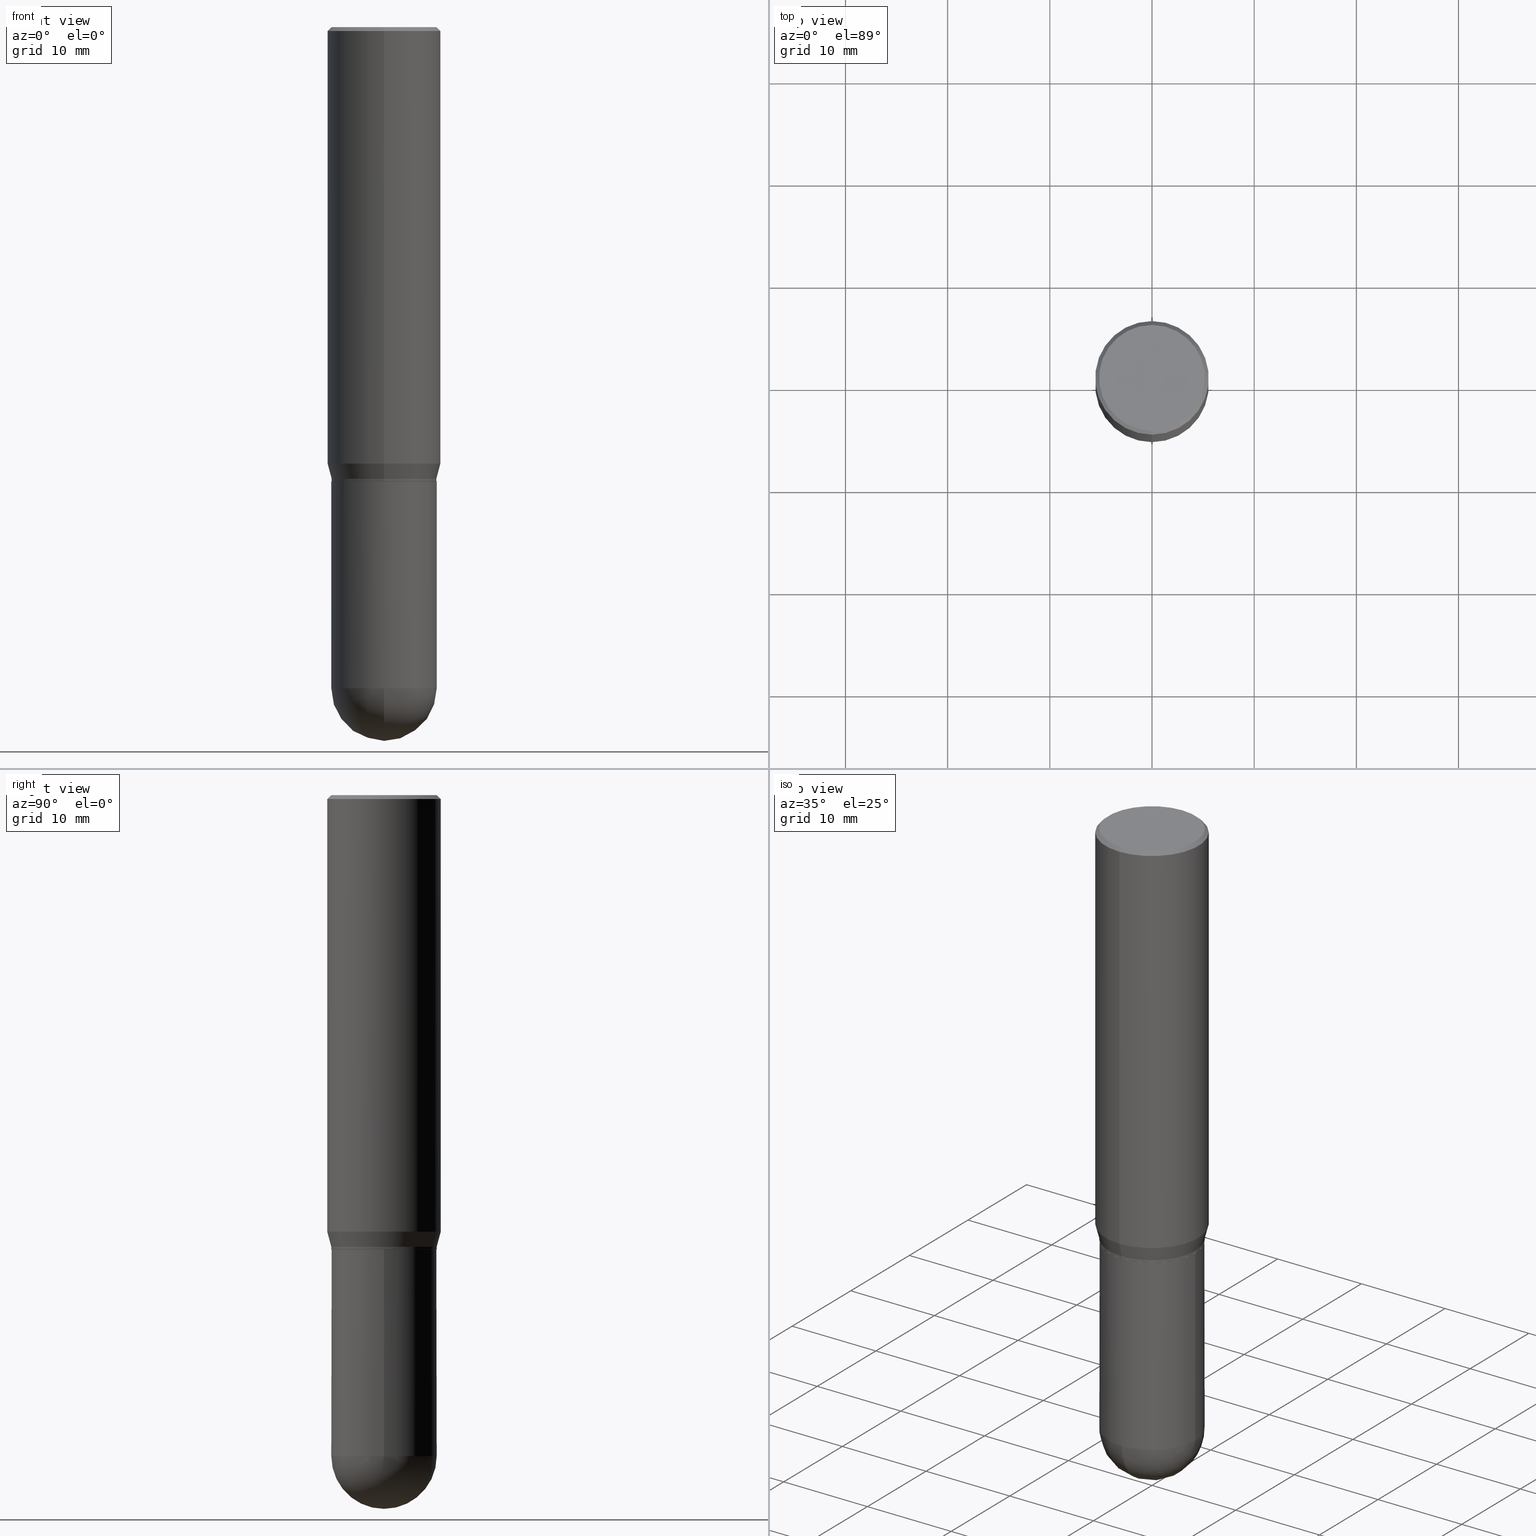
[diagram: canonical four-view strip — front | top / right | iso, engineering-drawing reading convention]
A machine part, canonical four-view strip (front | top / right | iso — engineering-drawing reading convention). The complete STEP part file that produces these views, byte-faithful:
ISO-10303-21;
HEADER;
FILE_DESCRIPTION (( 'STEP AP203' ),
    '1' );
FILE_NAME ('30552.STEP',
    '2024-03-08T15:32:50',
    ( '' ),
    ( '' ),
    'SwSTEP 2.0',
    'SolidWorks 2023',
    '' );
FILE_SCHEMA (( 'CONFIG_CONTROL_DESIGN' ));
ENDSEC;

DATA;
#1 = CARTESIAN_POINT ( 'NONE',  ( -1.527523085743870449E-15, -0.2187500000000000000, 7.637412823525378635E-16 ) ) ;
#2 = SHAPE_DEFINITION_REPRESENTATION ( #260, #502 ) ;
#3 = CIRCLE ( 'NONE', #336, 0.2037499999999999867 ) ;
#4 = AXIS2_PLACEMENT_3D ( 'NONE', #105, #224, #384 ) ;
#5 = VERTEX_POINT ( 'NONE', #112 ) ;
#6 = DIRECTION ( 'NONE',  ( -6.982962677686265133E-15, -1.000000000000000000, 3.746534391310989557E-15 ) ) ;
#7 = CARTESIAN_POINT ( 'NONE',  ( 3.668300223072564941E-31, -5.237083078988864869E-17, -0.01500000000000009832 ) ) ;
#8 = PERSON_AND_ORGANIZATION ( #443, #358 ) ;
#9 = DIRECTION ( 'NONE',  ( -2.445533482048360723E-29, 3.491388719325887151E-15, 1.000000000000000000 ) ) ;
#10 = PRODUCT_DEFINITION_FORMATION_WITH_SPECIFIED_SOURCE ( 'ANY', '', #314, .NOT_KNOWN. ) ;
#11 = AXIS2_PLACEMENT_3D ( 'NONE', #119, #233, #396 ) ;
#12 = EDGE_CURVE ( 'NONE', #106, #304, #253, .T. ) ;
#13 = EDGE_LOOP ( 'NONE', ( #346, #459, #498, #184 ) ) ;
#14 = EDGE_LOOP ( 'NONE', ( #492, #295, #503, #69 ) ) ;
#15 = CARTESIAN_POINT ( 'NONE',  ( 6.228364502472924746E-29, -8.892453821899607499E-15, -2.546899999999999942 ) ) ;
#16 = VERTEX_POINT ( 'NONE', #395 ) ;
#17 =( GEOMETRIC_REPRESENTATION_CONTEXT ( 3 ) GLOBAL_UNCERTAINTY_ASSIGNED_CONTEXT ( ( #142 ) ) GLOBAL_UNIT_ASSIGNED_CONTEXT ( ( #169, #322, #323 ) ) REPRESENTATION_CONTEXT ( 'NONE', 'WORKASPACE' ) );
#18 = VECTOR ( 'NONE', #153, 39.37007874015748143 ) ;
#19 = ADVANCED_FACE ( 'NONE', ( #192 ), #162, .T. ) ;
#20 = CARTESIAN_POINT ( 'NONE',  ( 1.527523085743871040E-15, 0.2187499999999999167, -0.01500000000000086160 ) ) ;
#21 = EDGE_LOOP ( 'NONE', ( #35, #53 ) ) ;
#22 = DESIGN_CONTEXT ( 'detailed design', #238, 'design' ) ;
#23 = DIRECTION ( 'NONE',  ( -6.982962677686265133E-15, -1.000000000000000000, 3.746534391310989557E-15 ) ) ;
#24 = ORIENTED_EDGE ( 'NONE', *, *, #317, .F. ) ;
#25 = CARTESIAN_POINT ( 'NONE',  ( 0.000000000000000000, 0.000000000000000000, 0.000000000000000000 ) ) ;
#26 = ORIENTED_EDGE ( 'NONE', *, *, #262, .F. ) ;
#27 = VECTOR ( 'NONE', #283, 39.37007874015748854 ) ;
#28 = VECTOR ( 'NONE', #161, 39.37007874015748143 ) ;
#29 = CARTESIAN_POINT ( 'NONE',  ( 0.000000000000000000, 0.000000000000000000, 0.000000000000000000 ) ) ;
#30 = VERTEX_POINT ( 'NONE', #310 ) ;
#31 = CC_DESIGN_PERSON_AND_ORGANIZATION_ASSIGNMENT ( #480, #355, ( #10 ) ) ;
#32 = DIRECTION ( 'NONE',  ( -2.445468806185136597E-29, 3.491481338843145583E-15, 1.000000000000000000 ) ) ;
#33 = EDGE_LOOP ( 'NONE', ( #324, #127, #103, #170 ) ) ;
#34 = EDGE_CURVE ( 'NONE', #373, #108, #385, .T. ) ;
#35 = ORIENTED_EDGE ( 'NONE', *, *, #342, .F. ) ;
#36 = AXIS2_PLACEMENT_3D ( 'NONE', #202, #331, #356 ) ;
#37 = EDGE_CURVE ( 'NONE', #30, #349, #495, .T. ) ;
#38 = DIRECTION ( 'NONE',  ( 1.000000000000000000, -6.982962677686262766E-15, 0.000000000000000000 ) ) ;
#39 = AXIS2_PLACEMENT_3D ( 'NONE', #309, #434, #471 ) ;
#40 = CARTESIAN_POINT ( 'NONE',  ( 2.425695952394959813E-45, -3.463067484814240316E-31, -9.918882608645434798E-17 ) ) ;
#41 = DIRECTION ( 'NONE',  ( -2.445533482048360723E-29, 3.491388719325887151E-15, 1.000000000000000000 ) ) ;
#42 = CARTESIAN_POINT ( 'NONE',  ( -1.500733937012521740E-15, -0.2187500000000000555, -0.01499999999999933505 ) ) ;
#43 = DIRECTION ( 'NONE',  ( -1.000000000000000000, 6.982962677686266711E-15, -4.883557194083112901E-29 ) ) ;
#44 = ORIENTED_EDGE ( 'NONE', *, *, #37, .T. ) ;
#45 = DIRECTION ( 'NONE',  ( -6.982962677686266711E-15, -1.000000000000000000, 4.035225987687243463E-15 ) ) ;
#46 = AXIS2_PLACEMENT_3D ( 'NONE', #7, #9, #372 ) ;
#47 = AXIS2_PLACEMENT_3D ( 'NONE', #345, #499, #151 ) ;
#48 = EDGE_CURVE ( 'NONE', #279, #335, #234, .T. ) ;
#49 = EDGE_CURVE ( 'NONE', #413, #5, #270, .T. ) ;
#50 = ORIENTED_EDGE ( 'NONE', *, *, #87, .F. ) ;
#51 = CIRCLE ( 'NONE', #458, 0.2030999999999999472 ) ;
#52 = CARTESIAN_POINT ( 'NONE',  ( 0.000000000000000000, 0.000000000000000000, 0.000000000000000000 ) ) ;
#53 = ORIENTED_EDGE ( 'NONE', *, *, #37, .F. ) ;
#54 = FACE_OUTER_BOUND ( 'NONE', #13, .T. ) ;
#55 = APPLICATION_CONTEXT ( 'configuration controlled 3d designs of mechanical parts and assemblies' ) ;
#56 = CC_DESIGN_PERSON_AND_ORGANIZATION_ASSIGNMENT ( #203, #237, ( #10 ) ) ;
#57 = AXIS2_PLACEMENT_3D ( 'NONE', #187, #348, #229 ) ;
#58 = CARTESIAN_POINT ( 'NONE',  ( -0.2031000000000000028, 1.443112296328763497E-15, -9.990357168307714203E-30 ) ) ;
#59 = ORIENTED_EDGE ( 'NONE', *, *, #194, .F. ) ;
#60 = CARTESIAN_POINT ( 'NONE',  ( 1.443112296328806293E-15, 0.2030999999999939243, -1.749500000000000721 ) ) ;
#61 = ORIENTED_EDGE ( 'NONE', *, *, #34, .F. ) ;
#62 = APPROVAL_DATE_TIME ( #109, #163 ) ;
#63 = FACE_OUTER_BOUND ( 'NONE', #379, .T. ) ;
#64 = CC_DESIGN_DATE_AND_TIME_ASSIGNMENT ( #363, #277, ( #247 ) ) ;
#65 = EDGE_LOOP ( 'NONE', ( #225, #223, #213, #494 ) ) ;
#66 = LOCAL_TIME ( 10, 32, 50.00000000000000000, #211 ) ;
#67 = AXIS2_PLACEMENT_3D ( 'NONE', #25, #416, #375 ) ;
#68 = FACE_OUTER_BOUND ( 'NONE', #254, .T. ) ;
#69 = ORIENTED_EDGE ( 'NONE', *, *, #466, .F. ) ;
#70 = PERSON_AND_ORGANIZATION ( #443, #358 ) ;
#71 = ORIENTED_EDGE ( 'NONE', *, *, #12, .T. ) ;
#72 = LINE ( 'NONE', #42, #482 ) ;
#73 = CARTESIAN_POINT ( 'NONE',  ( 1.443112296328805307E-15, 0.2030999999999938688, -1.740000000000000879 ) ) ;
#74 = CC_DESIGN_APPROVAL ( #163, ( #10 ) ) ;
#75 = DIRECTION ( 'NONE',  ( -2.445533482048360723E-29, 3.491388719325887151E-15, 1.000000000000000000 ) ) ;
#76 = AXIS2_PLACEMENT_3D ( 'NONE', #507, #500, #159 ) ;
#77 = AXIS2_PLACEMENT_3D ( 'NONE', #29, #32, #107 ) ;
#78 = DIRECTION ( 'NONE',  ( -1.000000000000000000, 7.105427357601001070E-15, -4.926315508542082329E-29 ) ) ;
#79 = CARTESIAN_POINT ( 'NONE',  ( 6.210996075139691695E-29, -8.917326398390289827E-15, -2.546899999999999942 ) ) ;
#80 = DIRECTION ( 'NONE',  ( -6.982962677686266711E-15, -1.000000000000000000, 4.035225987687243463E-15 ) ) ;
#81 = EDGE_CURVE ( 'NONE', #344, #173, #155, .T. ) ;
#82 =( LENGTH_UNIT ( ) NAMED_UNIT ( * ) SI_UNIT ( $, .METRE. ) );
#83 = AXIS2_PLACEMENT_3D ( 'NONE', #40, #122, #276 ) ;
#84 = ADVANCED_FACE ( 'NONE', ( #510 ), #440, .T. ) ;
#85 = APPLICATION_PROTOCOL_DEFINITION ( 'international standard', 'config_control_design', 1994, #55 ) ;
#86 = MANIFOLD_SOLID_BREP ( 'Body-Move/Copy2[2]', #131 ) ;
#87 = EDGE_CURVE ( 'NONE', #335, #16, #132, .T. ) ;
#88 = CYLINDRICAL_SURFACE ( 'NONE', #435, 0.2030999999999999472 ) ;
#89 = DIRECTION ( 'NONE',  ( -2.445533482048360723E-29, 3.491388719325887151E-15, 1.000000000000000000 ) ) ;
#90 = CC_DESIGN_SECURITY_CLASSIFICATION ( #247, ( #10 ) ) ;
#91 = ORIENTED_EDGE ( 'NONE', *, *, #486, .F. ) ;
#92 = CIRCLE ( 'NONE', #366, 0.2026000000000000023 ) ;
#93 = DIRECTION ( 'NONE',  ( -6.982962677686266711E-15, -1.000000000000000000, 3.491388719325887151E-15 ) ) ;
#94 = EDGE_CURVE ( 'NONE', #430, #100, #268, .T. ) ;
#95 = EDGE_LOOP ( 'NONE', ( #61, #423, #136, #461 ) ) ;
#96 = DIRECTION ( 'NONE',  ( 1.000000000000000000, -6.982962677686265922E-15, 4.883557194083112340E-29 ) ) ;
#97 = APPROVAL ( #352, 'UNSPECIFIED' ) ;
#98 = ORIENTED_EDGE ( 'NONE', *, *, #241, .F. ) ;
#99 = LINE ( 'NONE', #58, #18 ) ;
#100 = VERTEX_POINT ( 'NONE', #177 ) ;
#101 = AXIS2_PLACEMENT_3D ( 'NONE', #115, #75, #80 ) ;
#102 = CARTESIAN_POINT ( 'NONE',  ( -1.418239719838037782E-15, -0.2031000000000060257, -1.739999999999999103 ) ) ;
#103 = ORIENTED_EDGE ( 'NONE', *, *, #201, .T. ) ;
#104 = EDGE_CURVE ( 'NONE', #100, #279, #316, .T. ) ;
#105 = CARTESIAN_POINT ( 'NONE',  ( 3.668300223072564941E-31, -5.237083078988864869E-17, -0.01500000000000009832 ) ) ;
#106 = VERTEX_POINT ( 'NONE', #460 ) ;
#107 = DIRECTION ( 'NONE',  ( 1.000000000000000000, -6.982962677686266711E-15, 4.876176775795935793E-29 ) ) ;
#108 = VERTEX_POINT ( 'NONE', #299 ) ;
#109 = DATE_AND_TIME ( #462, #426 ) ;
#110 = AXIS2_PLACEMENT_3D ( 'NONE', #351, #313, #397 ) ;
#111 = VECTOR ( 'NONE', #172, 39.37007874015748854 ) ;
#112 = CARTESIAN_POINT ( 'NONE',  ( -1.418239719838037782E-15, -0.2031000000000060257, -1.739999999999999103 ) ) ;
#113 = CALENDAR_DATE ( 2024, 8, 3 ) ;
#114 = DIRECTION ( 'NONE',  ( 6.982962677686266711E-15, 1.000000000000000000, -2.690150658458162309E-15 ) ) ;
#115 = CARTESIAN_POINT ( 'NONE',  ( 4.278460826843606837E-29, -6.108184564460639779E-15, -1.749500000000000055 ) ) ;
#116 = CARTESIAN_POINT ( 'NONE',  ( -1.418239719838080381E-15, -0.2030999999999999472, 7.091010488950875281E-16 ) ) ;
#117 = CC_DESIGN_APPROVAL ( #97, ( #247 ) ) ;
#118 = PERSON_AND_ORGANIZATION_ROLE ( 'design_owner' ) ;
#119 = CARTESIAN_POINT ( 'NONE',  ( 0.000000000000000000, 0.000000000000000000, 0.000000000000000000 ) ) ;
#120 = AXIS2_PLACEMENT_3D ( 'NONE', #183, #96, #250 ) ;
#121 = DIRECTION ( 'NONE',  ( -6.982962677686265922E-15, -1.000000000000000000, 4.045184590815789415E-15 ) ) ;
#122 = DIRECTION ( 'NONE',  ( -2.445533482048360723E-29, 3.491388719325887151E-15, 1.000000000000000000 ) ) ;
#123 = CALENDAR_DATE ( 2024, 8, 3 ) ;
#124 = APPROVAL_STATUS ( 'not_yet_approved' ) ;
#125 = DIRECTION ( 'NONE',  ( -2.445468806185136597E-29, 3.491481338843145583E-15, 1.000000000000000000 ) ) ;
#126 = PERSON_AND_ORGANIZATION_ROLE ( 'classification_officer' ) ;
#127 = ORIENTED_EDGE ( 'NONE', *, *, #269, .T. ) ;
#128 = DATE_TIME_ROLE ( 'creation_date' ) ;
#129 = EDGE_CURVE ( 'NONE', #30, #150, #258, .T. ) ;
#130 = FACE_OUTER_BOUND ( 'NONE', #425, .T. ) ;
#131 = CLOSED_SHELL ( 'NONE', ( #146, #138, #364, #438, #215, #243, #175, #133, #280, #382, #228, #455 ) ) ;
#132 = CIRCLE ( 'NONE', #404, 0.2187500000000000000 ) ;
#133 = ADVANCED_FACE ( 'NONE', ( #337 ), #419, .T. ) ;
#134 = DIRECTION ( 'NONE',  ( -6.982962677686265133E-15, -1.000000000000000000, 3.491388719325887545E-15 ) ) ;
#135 = CARTESIAN_POINT ( 'NONE',  ( 6.716355003342508555E-29, -9.614009970063991023E-15, -2.750000000000000000 ) ) ;
#136 = ORIENTED_EDGE ( 'NONE', *, *, #403, .F. ) ;
#137 = VECTOR ( 'NONE', #143, 39.37007874015748143 ) ;
#138 = ADVANCED_FACE ( 'NONE', ( #334 ), #467, .T. ) ;
#139 = PLANE ( 'NONE',  #393 ) ;
#140 = DIRECTION ( 'NONE',  ( -2.445533482048360723E-29, 3.491388719325887151E-15, 1.000000000000000000 ) ) ;
#141 = EDGE_LOOP ( 'NONE', ( #26, #91, #391, #340 ) ) ;
#142 = UNCERTAINTY_MEASURE_WITH_UNIT (LENGTH_MEASURE( 1.000000000000000082E-05 ), #169, 'distance_accuracy_value', 'NONE');
#143 = DIRECTION ( 'NONE',  ( 4.937700262164548831E-15, 0.7071067811865452413, -0.7071067811865497932 ) ) ;
#144 = CIRCLE ( 'NONE', #46, 0.2187500000000000000 ) ;
#145 = ORIENTED_EDGE ( 'NONE', *, *, #49, .T. ) ;
#146 = ADVANCED_FACE ( 'NONE', ( #332 ), #381, .T. ) ;
#147 = AXIS2_PLACEMENT_3D ( 'NONE', #190, #125, #432 ) ;
#148 = AXIS2_PLACEMENT_3D ( 'NONE', #149, #301, #296 ) ;
#149 = CARTESIAN_POINT ( 'NONE',  ( 1.418239719838123571E-15, 0.2030999999999938965, -1.750000000000000666 ) ) ;
#150 = VERTEX_POINT ( 'NONE', #60 ) ;
#151 = DIRECTION ( 'NONE',  ( -6.982962677686265922E-15, -1.000000000000000000, 4.045184590815789415E-15 ) ) ;
#152 = VERTEX_POINT ( 'NONE', #388 ) ;
#153 = DIRECTION ( 'NONE',  ( -2.445468806185136877E-29, 3.491481338843145188E-15, 1.000000000000000000 ) ) ;
#154 = ORIENTED_EDGE ( 'NONE', *, *, #34, .T. ) ;
#155 = CIRCLE ( 'NONE', #83, 0.2037499999999999867 ) ;
#156 = APPLICATION_PROTOCOL_DEFINITION ( 'international standard', 'config_control_design', 1994, #238 ) ;
#157 = DIRECTION ( 'NONE',  ( -6.982962677686266711E-15, -1.000000000000000000, 4.035225987687243463E-15 ) ) ;
#158 = ADVANCED_FACE ( 'NONE', ( #463 ), #453, .T. ) ;
#159 = DIRECTION ( 'NONE',  ( 1.000000000000000000, -6.982962677686269866E-15, 0.000000000000000000 ) ) ;
#160 = PLANE ( 'NONE',  #39 ) ;
#161 = DIRECTION ( 'NONE',  ( -2.445468806185136877E-29, 3.491481338843145188E-15, 1.000000000000000000 ) ) ;
#162 = SPHERICAL_SURFACE ( 'NONE', #294, 0.2030999999999999472 ) ;
#163 = APPROVAL ( #361, 'UNSPECIFIED' ) ;
#164 = AXIS2_PLACEMENT_3D ( 'NONE', #174, #457, #23 ) ;
#165 = FACE_OUTER_BOUND ( 'NONE', #420, .T. ) ;
#166 = DATE_AND_TIME ( #123, #209 ) ;
#167 = CARTESIAN_POINT ( 'NONE',  ( 4.279683593584631335E-29, -6.109930258820301331E-15, -1.750000000000000000 ) ) ;
#168 = CALENDAR_DATE ( 2024, 8, 3 ) ;
#169 =( CONVERSION_BASED_UNIT ( 'INCH', #207 ) LENGTH_UNIT ( ) NAMED_UNIT ( #484 ) );
#170 = ORIENTED_EDGE ( 'NONE', *, *, #104, .F. ) ;
#171 = DIRECTION ( 'NONE',  ( -2.445533482048360723E-29, 3.491388719325887151E-15, 1.000000000000000000 ) ) ;
#172 = DIRECTION ( 'NONE',  ( 5.024295867788231995E-15, 0.7071067811865739960, 0.7071067811865208164 ) ) ;
#173 = VERTEX_POINT ( 'NONE', #490 ) ;
#174 = CARTESIAN_POINT ( 'NONE',  ( 4.112392974780617648E-29, -5.871096244226413980E-15, -1.681593404861546848 ) ) ;
#175 = ADVANCED_FACE ( 'NONE', ( #54 ), #501, .T. ) ;
#176 = EDGE_LOOP ( 'NONE', ( #468, #489, #485, #454, #300 ) ) ;
#177 = CARTESIAN_POINT ( 'NONE',  ( 1.554312234475260177E-15, 0.2187499999999941436, -1.681593404861547736 ) ) ;
#178 = CIRCLE ( 'NONE', #417, 0.2030999999999999472 ) ;
#179 = ORIENTED_EDGE ( 'NONE', *, *, #87, .T. ) ;
#180 = AXIS2_PLACEMENT_3D ( 'NONE', #199, #360, #6 ) ;
#181 = DIRECTION ( 'NONE',  ( -2.445533482048360723E-29, 3.491388719325887151E-15, 1.000000000000000000 ) ) ;
#182 = ORIENTED_EDGE ( 'NONE', *, *, #317, .T. ) ;
#183 = CARTESIAN_POINT ( 'NONE',  ( 6.210996075139691695E-29, -8.917326398390289827E-15, -2.546899999999999942 ) ) ;
#184 = ORIENTED_EDGE ( 'NONE', *, *, #429, .F. ) ;
#185 = EDGE_CURVE ( 'NONE', #150, #430, #226, .T. ) ;
#186 = PERSON_AND_ORGANIZATION ( #443, #358 ) ;
#187 = CARTESIAN_POINT ( 'NONE',  ( 4.279570410823988484E-29, -6.110092342975504671E-15, -1.750000000000000000 ) ) ;
#188 = EDGE_LOOP ( 'NONE', ( #371, #71 ) ) ;
#189 = VECTOR ( 'NONE', #427, 39.37007874015748854 ) ;
#190 = CARTESIAN_POINT ( 'NONE',  ( 6.228364502472924746E-29, -8.892453821899607499E-15, -2.546899999999999942 ) ) ;
#191 = LINE ( 'NONE', #508, #28 ) ;
#192 = FACE_OUTER_BOUND ( 'NONE', #377, .T. ) ;
#193 = CALENDAR_DATE ( 2024, 8, 3 ) ;
#194 = EDGE_CURVE ( 'NONE', #173, #16, #261, .T. ) ;
#195 = SECURITY_CLASSIFICATION_LEVEL ( 'unclassified' ) ;
#196 = CARTESIAN_POINT ( 'NONE',  ( -1.527523085743829428E-15, -0.2187500000000058287, -1.681593404861545960 ) ) ;
#197 = CARTESIAN_POINT ( 'NONE',  ( 6.228364502472924746E-29, -8.892453821899607499E-15, -2.546899999999999942 ) ) ;
#198 = CARTESIAN_POINT ( 'NONE',  ( 3.668300223072564941E-31, -5.237083078988864869E-17, -0.01500000000000009832 ) ) ;
#199 = CARTESIAN_POINT ( 'NONE',  ( 4.112392974780617648E-29, -5.871096244226413980E-15, -1.681593404861546848 ) ) ;
#200 = VECTOR ( 'NONE', #378, 39.37007874015748143 ) ;
#201 = EDGE_CURVE ( 'NONE', #5, #279, #256, .T. ) ;
#202 = CARTESIAN_POINT ( 'NONE',  ( 0.000000000000000000, 0.000000000000000000, 0.000000000000000000 ) ) ;
#203 = PERSON_AND_ORGANIZATION ( #443, #358 ) ;
#204 = FACE_OUTER_BOUND ( 'NONE', #21, .T. ) ;
#205 = APPROVAL_PERSON_ORGANIZATION ( #8, #97, #242 ) ;
#206 = AXIS2_PLACEMENT_3D ( 'NONE', #436, #78, #236 ) ;
#207 = LENGTH_MEASURE_WITH_UNIT ( LENGTH_MEASURE( 0.02539999999999999897 ), #82 );
#208 = AXIS2_PLACEMENT_3D ( 'NONE', #424, #140, #343 ) ;
#209 = LOCAL_TIME ( 10, 32, 50.00000000000000000, #477 ) ;
#210 = ORIENTED_EDGE ( 'NONE', *, *, #185, .F. ) ;
#211 = COORDINATED_UNIVERSAL_TIME_OFFSET ( 5, 0, .BEHIND. ) ;
#212 = EDGE_CURVE ( 'NONE', #470, #106, #99, .T. ) ;
#213 = ORIENTED_EDGE ( 'NONE', *, *, #307, .F. ) ;
#214 = DIRECTION ( 'NONE',  ( -2.445468806185136597E-29, 3.491481338843145583E-15, 1.000000000000000000 ) ) ;
#215 = ADVANCED_FACE ( 'NONE', ( #68 ), #255, .T. ) ;
#216 = CARTESIAN_POINT ( 'NONE',  ( 1.443112296328762905E-15, 0.2030999999999999472, -7.091010488950875281E-16 ) ) ;
#217 = CC_DESIGN_APPROVAL ( #509, ( #248 ) ) ;
#218 = AXIS2_PLACEMENT_3D ( 'NONE', #465, #392, #350 ) ;
#219 = ADVANCED_FACE ( 'NONE', ( #220 ), #422, .F. ) ;
#220 = FACE_OUTER_BOUND ( 'NONE', #188, .T. ) ;
#221 = ORIENTED_EDGE ( 'NONE', *, *, #251, .T. ) ;
#222 = CARTESIAN_POINT ( 'NONE',  ( 1.439559582650005591E-15, 0.2025999999999938961, -1.750000000000000666 ) ) ;
#223 = ORIENTED_EDGE ( 'NONE', *, *, #185, .T. ) ;
#224 = DIRECTION ( 'NONE',  ( 2.445533482048360723E-29, -3.491388719325887151E-15, -1.000000000000000000 ) ) ;
#225 = ORIENTED_EDGE ( 'NONE', *, *, #285, .T. ) ;
#226 = LINE ( 'NONE', #216, #376 ) ;
#227 = ORIENTED_EDGE ( 'NONE', *, *, #403, .T. ) ;
#228 = ADVANCED_FACE ( 'NONE', ( #63 ), #428, .T. ) ;
#229 = DIRECTION ( 'NONE',  ( 1.000000000000000000, -6.982962677686269866E-15, 0.000000000000000000 ) ) ;
#230 = EDGE_LOOP ( 'NONE', ( #210, #409, #145, #288 ) ) ;
#231 = DIRECTION ( 'NONE',  ( -6.982962677686265133E-15, -1.000000000000000000, 3.492862791899308071E-15 ) ) ;
#232 = EDGE_CURVE ( 'NONE', #373, #152, #305, .T. ) ;
#233 = DIRECTION ( 'NONE',  ( -2.445468806185136597E-29, 3.491481338843145583E-15, 1.000000000000000000 ) ) ;
#234 = LINE ( 'NONE', #1, #272 ) ;
#235 = FACE_OUTER_BOUND ( 'NONE', #389, .T. ) ;
#236 = DIRECTION ( 'NONE',  ( -7.105427357601001070E-15, -1.000000000000000000, 0.000000000000000000 ) ) ;
#237 = PERSON_AND_ORGANIZATION_ROLE ( 'creator' ) ;
#238 = APPLICATION_CONTEXT ( 'configuration controlled 3d designs of mechanical parts and assemblies' ) ;
#239 = LINE ( 'NONE', #512, #273 ) ;
#240 = CARTESIAN_POINT ( 'NONE',  ( 4.279683593584631335E-29, -6.109930258820301331E-15, -1.750000000000000000 ) ) ;
#241 = EDGE_CURVE ( 'NONE', #304, #106, #339, .T. ) ;
#242 = APPROVAL_ROLE ( '' ) ;
#243 = ADVANCED_FACE ( 'NONE', ( #390 ), #367, .T. ) ;
#244 = CYLINDRICAL_SURFACE ( 'NONE', #456, 0.2187500000000000000 ) ;
#245 = DIRECTION ( 'NONE',  ( -6.982962677686266711E-15, -1.000000000000000000, 4.035225987687243463E-15 ) ) ;
#246 = ORIENTED_EDGE ( 'NONE', *, *, #326, .F. ) ;
#247 = SECURITY_CLASSIFICATION ( '', '', #195 ) ;
#248 = PRODUCT_DEFINITION ( 'UNKNOWN', '', #10, #22 ) ;
#249 = AXIS2_PLACEMENT_3D ( 'NONE', #197, #394, #38 ) ;
#250 = DIRECTION ( 'NONE',  ( 6.982962677686266711E-15, 1.000000000000000000, 0.000000000000000000 ) ) ;
#251 = EDGE_CURVE ( 'NONE', #152, #470, #328, .T. ) ;
#252 = DIRECTION ( 'NONE',  ( -2.445533482048360723E-29, 3.491388719325887151E-15, 1.000000000000000000 ) ) ;
#253 = CIRCLE ( 'NONE', #76, 0.2031000000000000028 ) ;
#254 = EDGE_LOOP ( 'NONE', ( #479, #308, #24, #329 ) ) ;
#255 = CONICAL_SURFACE ( 'NONE', #282, 0.2030999999999999472, 0.2617993877991492413 ) ;
#256 = LINE ( 'NONE', #102, #189 ) ;
#257 = ORIENTED_EDGE ( 'NONE', *, *, #473, .F. ) ;
#258 = LINE ( 'NONE', #222, #111 ) ;
#259 = EDGE_LOOP ( 'NONE', ( #221, #464, #98, #415, #227 ) ) ;
#260 = PRODUCT_DEFINITION_SHAPE ( 'NONE', 'NONE',  #248 ) ;
#261 = LINE ( 'NONE', #20, #137 ) ;
#262 = EDGE_CURVE ( 'NONE', #344, #335, #72, .T. ) ;
#263 = ORIENTED_EDGE ( 'NONE', *, *, #466, .T. ) ;
#264 = AXIS2_PLACEMENT_3D ( 'NONE', #290, #252, #493 ) ;
#265 = MANIFOLD_SOLID_BREP ( 'Body-Move/Copy2[1]', #505 ) ;
#266 = ORIENTED_EDGE ( 'NONE', *, *, #81, .T. ) ;
#267 = APPROVAL_ROLE ( '' ) ;
#268 = LINE ( 'NONE', #73, #200 ) ;
#269 = EDGE_CURVE ( 'NONE', #430, #5, #445, .T. ) ;
#270 = LINE ( 'NONE', #116, #338 ) ;
#271 = AXIS2_PLACEMENT_3D ( 'NONE', #365, #214, #362 ) ;
#272 = VECTOR ( 'NONE', #41, 39.37007874015748143 ) ;
#273 = VECTOR ( 'NONE', #401, 39.37007874015748143 ) ;
#274 = COORDINATED_UNIVERSAL_TIME_OFFSET ( 5, 0, .BEHIND. ) ;
#275 = CARTESIAN_POINT ( 'NONE',  ( 4.255228258764148112E-29, -6.075016371627043485E-15, -1.739999999999999991 ) ) ;
#276 = DIRECTION ( 'NONE',  ( -6.982962677686265133E-15, -1.000000000000000000, 3.491388719325886756E-15 ) ) ;
#277 = DATE_TIME_ROLE ( 'classification_date' ) ;
#278 = CYLINDRICAL_SURFACE ( 'NONE', #11, 0.2031000000000000028 ) ;
#279 = VERTEX_POINT ( 'NONE', #196 ) ;
#280 = ADVANCED_FACE ( 'NONE', ( #235 ), #160, .F. ) ;
#281 = APPROVAL_DATE_TIME ( #166, #97 ) ;
#282 = AXIS2_PLACEMENT_3D ( 'NONE', #418, #181, #293 ) ;
#283 = DIRECTION ( 'NONE',  ( -4.937700262164715281E-15, -0.7071067811865691111, 0.7071067811865257013 ) ) ;
#284 = FACE_OUTER_BOUND ( 'NONE', #230, .T. ) ;
#285 = EDGE_CURVE ( 'NONE', #413, #150, #319, .T. ) ;
#286 = CARTESIAN_POINT ( 'NONE',  ( 2.425695952394959813E-45, -3.463067484814240316E-31, -9.918882608645434798E-17 ) ) ;
#287 = CIRCLE ( 'NONE', #437, 0.2031000000000000583 ) ;
#288 = ORIENTED_EDGE ( 'NONE', *, *, #269, .F. ) ;
#289 = ORIENTED_EDGE ( 'NONE', *, *, #232, .F. ) ;
#290 = CARTESIAN_POINT ( 'NONE',  ( 0.000000000000000000, 0.000000000000000000, 0.000000000000000000 ) ) ;
#291 = ORIENTED_EDGE ( 'NONE', *, *, #486, .T. ) ;
#292 = APPROVAL_ROLE ( '' ) ;
#293 = DIRECTION ( 'NONE',  ( -6.982962677686266711E-15, -1.000000000000000000, 4.035225987687243463E-15 ) ) ;
#294 = AXIS2_PLACEMENT_3D ( 'NONE', #79, #354, #472 ) ;
#295 = ORIENTED_EDGE ( 'NONE', *, *, #129, .T. ) ;
#296 = DIRECTION ( 'NONE',  ( -1.000000000000000000, 6.982962677686265922E-15, -4.876176775795935793E-29 ) ) ;
#297 = ORIENTED_EDGE ( 'NONE', *, *, #81, .F. ) ;
#298 = ADVANCED_FACE ( 'NONE', ( #353 ), #278, .T. ) ;
#299 = CARTESIAN_POINT ( 'NONE',  ( -1.443112296328700980E-15, -0.2031000000000088845, -2.546899999999999498 ) ) ;
#300 = ORIENTED_EDGE ( 'NONE', *, *, #12, .F. ) ;
#301 = DIRECTION ( 'NONE',  ( 2.438088387897960049E-29, -3.491481338843145188E-15, -1.000000000000000000 ) ) ;
#302 = EDGE_CURVE ( 'NONE', #100, #16, #239, .T. ) ;
#303 = APPROVAL_PERSON_ORGANIZATION ( #70, #509, #267 ) ;
#304 = VERTEX_POINT ( 'NONE', #442 ) ;
#305 = CIRCLE ( 'NONE', #120, 0.2030999999999999472 ) ;
#306 = PERSON_AND_ORGANIZATION ( #443, #358 ) ;
#307 = EDGE_CURVE ( 'NONE', #5, #430, #51, .T. ) ;
#308 = ORIENTED_EDGE ( 'NONE', *, *, #94, .T. ) ;
#309 = CARTESIAN_POINT ( 'NONE',  ( 1.422778645578576487E-15, 0.2037499999999999867, -7.609648646058765676E-16 ) ) ;
#310 = CARTESIAN_POINT ( 'NONE',  ( 1.441335939489405449E-15, 0.2025999999999938961, -1.750000000000000666 ) ) ;
#311 = DIRECTION ( 'NONE',  ( -4.851104656540965064E-15, -0.7071067811865501263, -0.7071067811865449082 ) ) ;
#312 = CARTESIAN_POINT ( 'NONE',  ( -1.527523085743870054E-15, -0.2187500000000000555, -0.01499999999999933505 ) ) ;
#313 = DIRECTION ( 'NONE',  ( -2.445533482048360723E-29, 3.491388719325887151E-15, 1.000000000000000000 ) ) ;
#314 = PRODUCT ( '30552', '30552', '', ( #511 ) ) ;
#315 = LOCAL_TIME ( 10, 32, 50.00000000000000000, #359 ) ;
#316 = CIRCLE ( 'NONE', #164, 0.2187500000000000000 ) ;
#317 = EDGE_CURVE ( 'NONE', #279, #100, #411, .T. ) ;
#318 = DIRECTION ( 'NONE',  ( 1.000000000000000000, -6.982962677686262766E-15, 0.000000000000000000 ) ) ;
#319 = CIRCLE ( 'NONE', #101, 0.2030999999999999472 ) ;
#320 = DIRECTION ( 'NONE',  ( -2.445533482048360442E-29, 3.491388719325887151E-15, 1.000000000000000000 ) ) ;
#321 = CC_DESIGN_DATE_AND_TIME_ASSIGNMENT ( #380, #128, ( #248 ) ) ;
#322 =( NAMED_UNIT ( * ) PLANE_ANGLE_UNIT ( ) SI_UNIT ( $, .RADIAN. ) );
#323 =( NAMED_UNIT ( * ) SI_UNIT ( $, .STERADIAN. ) SOLID_ANGLE_UNIT ( ) );
#324 = ORIENTED_EDGE ( 'NONE', *, *, #94, .F. ) ;
#325 = APPROVAL_PERSON_ORGANIZATION ( #333, #163, #292 ) ;
#326 = EDGE_CURVE ( 'NONE', #470, #108, #476, .T. ) ;
#327 = DIRECTION ( 'NONE',  ( 6.982962677686265133E-15, 1.000000000000000000, -3.492862791899308071E-15 ) ) ;
#328 = CIRCLE ( 'NONE', #147, 0.2031000000000000583 ) ;
#329 = ORIENTED_EDGE ( 'NONE', *, *, #201, .F. ) ;
#330 = EDGE_CURVE ( 'NONE', #451, #304, #191, .T. ) ;
#331 = DIRECTION ( 'NONE',  ( 0.000000000000000000, 0.000000000000000000, 1.000000000000000000 ) ) ;
#332 = FACE_OUTER_BOUND ( 'NONE', #65, .T. ) ;
#333 = PERSON_AND_ORGANIZATION ( #443, #358 ) ;
#334 = FACE_OUTER_BOUND ( 'NONE', #14, .T. ) ;
#335 = VERTEX_POINT ( 'NONE', #312 ) ;
#336 = AXIS2_PLACEMENT_3D ( 'NONE', #286, #446, #406 ) ;
#337 = FACE_OUTER_BOUND ( 'NONE', #141, .T. ) ;
#338 = VECTOR ( 'NONE', #475, 39.37007874015748143 ) ;
#339 = CIRCLE ( 'NONE', #57, 0.2031000000000000028 ) ;
#340 = ORIENTED_EDGE ( 'NONE', *, *, #429, .T. ) ;
#341 = CIRCLE ( 'NONE', #271, 0.2031000000000000583 ) ;
#342 = EDGE_CURVE ( 'NONE', #349, #30, #92, .T. ) ;
#343 = DIRECTION ( 'NONE',  ( -6.982962677686265922E-15, -1.000000000000000000, 4.045184590815789415E-15 ) ) ;
#344 = VERTEX_POINT ( 'NONE', #402 ) ;
#345 = CARTESIAN_POINT ( 'NONE',  ( 4.279683593584631335E-29, -6.109930258820301331E-15, -1.750000000000000000 ) ) ;
#346 = ORIENTED_EDGE ( 'NONE', *, *, #302, .F. ) ;
#347 = APPROVAL_DATE_TIME ( #400, #509 ) ;
#348 = DIRECTION ( 'NONE',  ( -2.445468806185136597E-29, 3.491481338843145583E-15, 1.000000000000000000 ) ) ;
#349 = VERTEX_POINT ( 'NONE', #357 ) ;
#350 = DIRECTION ( 'NONE',  ( -6.982962677686266711E-15, -1.000000000000000000, 4.035225987687243463E-15 ) ) ;
#351 = CARTESIAN_POINT ( 'NONE',  ( 4.279683593584631335E-29, -6.109930258820301331E-15, -1.750000000000000000 ) ) ;
#352 = APPROVAL_STATUS ( 'not_yet_approved' ) ;
#353 = FACE_OUTER_BOUND ( 'NONE', #176, .T. ) ;
#354 = DIRECTION ( 'NONE',  ( -1.000000000000000000, 6.982962677686266711E-15, -4.883557194083112901E-29 ) ) ;
#355 = PERSON_AND_ORGANIZATION_ROLE ( 'design_supplier' ) ;
#356 = DIRECTION ( 'NONE',  ( 1.000000000000000000, 0.000000000000000000, 0.000000000000000000 ) ) ;
#357 = CARTESIAN_POINT ( 'NONE',  ( -1.414748238499194972E-15, -0.2026000000000061363, -1.749999999999999112 ) ) ;
#358 = ORGANIZATION ( 'UNSPECIFIED', 'UNSPECIFIED', '' ) ;
#359 = COORDINATED_UNIVERSAL_TIME_OFFSET ( 5, 0, .BEHIND. ) ;
#360 = DIRECTION ( 'NONE',  ( -2.445533482048360723E-29, 3.491388719325887151E-15, 1.000000000000000000 ) ) ;
#361 = APPROVAL_STATUS ( 'not_yet_approved' ) ;
#362 = DIRECTION ( 'NONE',  ( 1.000000000000000000, -6.982962677686262766E-15, 0.000000000000000000 ) ) ;
#363 = DATE_AND_TIME ( #193, #315 ) ;
#364 = ADVANCED_FACE ( 'NONE', ( #165 ), #410, .T. ) ;
#365 = CARTESIAN_POINT ( 'NONE',  ( 6.228364502472924746E-29, -8.892453821899607499E-15, -2.546899999999999942 ) ) ;
#366 = AXIS2_PLACEMENT_3D ( 'NONE', #240, #474, #121 ) ;
#367 = CONICAL_SURFACE ( 'NONE', #506, 0.2030999999999999472, 0.2617993877991492413 ) ;
#368 = CARTESIAN_POINT ( 'NONE',  ( 3.668300223072564941E-31, -5.237083078988864869E-17, -0.01500000000000009832 ) ) ;
#369 = ORIENTED_EDGE ( 'NONE', *, *, #129, .F. ) ;
#370 = CARTESIAN_POINT ( 'NONE',  ( 4.278460826843606837E-29, -6.108184564460639779E-15, -1.749500000000000055 ) ) ;
#371 = ORIENTED_EDGE ( 'NONE', *, *, #241, .T. ) ;
#372 = DIRECTION ( 'NONE',  ( -6.982962677686265133E-15, -1.000000000000000000, 3.492862791899308071E-15 ) ) ;
#373 = VERTEX_POINT ( 'NONE', #135 ) ;
#374 = EDGE_CURVE ( 'NONE', #108, #451, #341, .T. ) ;
#375 = DIRECTION ( 'NONE',  ( -6.982962677686265133E-15, -1.000000000000000000, 3.491388719325887545E-15 ) ) ;
#376 = VECTOR ( 'NONE', #496, 39.37007874015748143 ) ;
#377 = EDGE_LOOP ( 'NONE', ( #289, #154, #246, #387 ) ) ;
#378 = DIRECTION ( 'NONE',  ( 1.839019923739593216E-15, 0.2588190451025239591, 0.9659258262890674240 ) ) ;
#379 = EDGE_LOOP ( 'NONE', ( #369, #44, #263, #257 ) ) ;
#380 = DATE_AND_TIME ( #168, #66 ) ;
#381 = CYLINDRICAL_SURFACE ( 'NONE', #264, 0.2030999999999999472 ) ;
#382 = ADVANCED_FACE ( 'NONE', ( #204 ), #139, .F. ) ;
#383 = ORIENTED_EDGE ( 'NONE', *, *, #48, .F. ) ;
#384 = DIRECTION ( 'NONE',  ( 6.982962677686265133E-15, 1.000000000000000000, -3.492862791899308071E-15 ) ) ;
#385 = CIRCLE ( 'NONE', #206, 0.2030999999999999472 ) ;
#386 = AXIS2_PLACEMENT_3D ( 'NONE', #399, #43, #114 ) ;
#387 = ORIENTED_EDGE ( 'NONE', *, *, #251, .F. ) ;
#388 = CARTESIAN_POINT ( 'NONE',  ( 1.418239719838142898E-15, 0.2030999999999910932, -2.546900000000000830 ) ) ;
#389 = EDGE_LOOP ( 'NONE', ( #291, #266 ) ) ;
#390 = FACE_OUTER_BOUND ( 'NONE', #33, .T. ) ;
#391 = ORIENTED_EDGE ( 'NONE', *, *, #194, .T. ) ;
#392 = DIRECTION ( 'NONE',  ( -2.445533482048360723E-29, 3.491388719325887151E-15, 1.000000000000000000 ) ) ;
#393 = AXIS2_PLACEMENT_3D ( 'NONE', #167, #320, #487 ) ;
#394 = DIRECTION ( 'NONE',  ( -2.445468806185136597E-29, 3.491481338843145583E-15, 1.000000000000000000 ) ) ;
#395 = CARTESIAN_POINT ( 'NONE',  ( 1.554312234475260375E-15, 0.2187499999999999167, -0.01500000000000086160 ) ) ;
#396 = DIRECTION ( 'NONE',  ( 1.000000000000000000, -6.982962677686266711E-15, 4.876176775795935793E-29 ) ) ;
#397 = DIRECTION ( 'NONE',  ( -6.982962677686265922E-15, -1.000000000000000000, 4.045184590815789415E-15 ) ) ;
#398 = PRODUCT_RELATED_PRODUCT_CATEGORY ( 'detail', '', ( #314 ) ) ;
#399 = CARTESIAN_POINT ( 'NONE',  ( 6.210996075139691695E-29, -8.917326398390289827E-15, -2.546899999999999942 ) ) ;
#400 = DATE_AND_TIME ( #113, #444 ) ;
#401 = DIRECTION ( 'NONE',  ( -2.445533482048360723E-29, 3.491388719325887151E-15, 1.000000000000000000 ) ) ;
#402 = CARTESIAN_POINT ( 'NONE',  ( -1.449280202029235538E-15, -0.2037499999999999867, 6.121816254761950209E-16 ) ) ;
#403 = EDGE_CURVE ( 'NONE', #451, #152, #287, .T. ) ;
#404 = AXIS2_PLACEMENT_3D ( 'NONE', #198, #433, #231 ) ;
#405 = COORDINATED_UNIVERSAL_TIME_OFFSET ( 5, 0, .BEHIND. ) ;
#406 = DIRECTION ( 'NONE',  ( -6.982962677686265133E-15, -1.000000000000000000, 3.491388719325886756E-15 ) ) ;
#407 = DIRECTION ( 'NONE',  ( 2.445533482048360723E-29, -3.491388719325887151E-15, -1.000000000000000000 ) ) ;
#408 = CARTESIAN_POINT ( 'NONE',  ( -1.414748238499194972E-15, -0.2026000000000061363, -1.749999999999999112 ) ) ;
#409 = ORIENTED_EDGE ( 'NONE', *, *, #473, .T. ) ;
#410 = CONICAL_SURFACE ( 'NONE', #497, 0.2187500000000000000, 0.7853981633974485010 ) ;
#411 = CIRCLE ( 'NONE', #180, 0.2187500000000000000 ) ;
#412 = LINE ( 'NONE', #408, #27 ) ;
#413 = VERTEX_POINT ( 'NONE', #448 ) ;
#414 = CARTESIAN_POINT ( 'NONE',  ( 0.2031000000000000583, -8.919512802275635677E-15, -2.546899999999999942 ) ) ;
#415 = ORIENTED_EDGE ( 'NONE', *, *, #330, .F. ) ;
#416 = DIRECTION ( 'NONE',  ( -2.445533482048360723E-29, 3.491388719325887151E-15, 1.000000000000000000 ) ) ;
#417 = AXIS2_PLACEMENT_3D ( 'NONE', #370, #89, #245 ) ;
#418 = CARTESIAN_POINT ( 'NONE',  ( 4.255228258764148112E-29, -6.075016371627043485E-15, -1.739999999999999991 ) ) ;
#419 = CONICAL_SURFACE ( 'NONE', #4, 0.2187500000000000000, 0.7853981633974485010 ) ;
#420 = EDGE_LOOP ( 'NONE', ( #297, #431, #179, #59 ) ) ;
#421 = CC_DESIGN_PERSON_AND_ORGANIZATION_ASSIGNMENT ( #306, #469, ( #248 ) ) ;
#422 = PLANE ( 'NONE',  #148 ) ;
#423 = ORIENTED_EDGE ( 'NONE', *, *, #232, .T. ) ;
#424 = CARTESIAN_POINT ( 'NONE',  ( 4.279683593584631335E-29, -6.109930258820301331E-15, -1.750000000000000000 ) ) ;
#425 = EDGE_LOOP ( 'NONE', ( #182, #452, #50, #383 ) ) ;
#426 = LOCAL_TIME ( 10, 32, 50.00000000000000000, #405 ) ;
#427 = DIRECTION ( 'NONE',  ( -1.807323732225323040E-15, -0.2588190451025171868, 0.9659258262890693114 ) ) ;
#428 = CONICAL_SURFACE ( 'NONE', #47, 0.2026000000000000023, 0.7853981633974824739 ) ;
#429 = EDGE_CURVE ( 'NONE', #16, #335, #144, .T. ) ;
#430 = VERTEX_POINT ( 'NONE', #481 ) ;
#431 = ORIENTED_EDGE ( 'NONE', *, *, #262, .T. ) ;
#432 = DIRECTION ( 'NONE',  ( 1.000000000000000000, -6.982962677686262766E-15, 0.000000000000000000 ) ) ;
#433 = DIRECTION ( 'NONE',  ( -2.445533482048360723E-29, 3.491388719325887151E-15, 1.000000000000000000 ) ) ;
#434 = DIRECTION ( 'NONE',  ( 2.445533482048360442E-29, -3.491388719325887151E-15, -1.000000000000000000 ) ) ;
#435 = AXIS2_PLACEMENT_3D ( 'NONE', #52, #171, #93 ) ;
#436 = CARTESIAN_POINT ( 'NONE',  ( 6.210996075139691695E-29, -8.917326398390289827E-15, -2.546899999999999942 ) ) ;
#437 = AXIS2_PLACEMENT_3D ( 'NONE', #15, #450, #318 ) ;
#438 = ADVANCED_FACE ( 'NONE', ( #130 ), #244, .T. ) ;
#439 = DIRECTION ( 'NONE',  ( -2.445533482048360723E-29, 3.491388719325887151E-15, 1.000000000000000000 ) ) ;
#440 = SPHERICAL_SURFACE ( 'NONE', #386, 0.2030999999999999472 ) ;
#441 = PERSON_AND_ORGANIZATION ( #443, #358 ) ;
#442 = CARTESIAN_POINT ( 'NONE',  ( 0.2031000000000000028, -7.528332062813585446E-15, -1.750000000000000000 ) ) ;
#443 = PERSON ( 'UNSPECIFIED', 'UNSPECIFIED', 'UNSPECIFIED', ('UNSPECIFIED'), ('UNSPECIFIED'), ('UNSPECIFIED') ) ;
#444 = LOCAL_TIME ( 10, 32, 50.00000000000000000, #274 ) ;
#445 = CIRCLE ( 'NONE', #218, 0.2030999999999999472 ) ;
#446 = DIRECTION ( 'NONE',  ( -2.445533482048360723E-29, 3.491388719325887151E-15, 1.000000000000000000 ) ) ;
#447 = DIRECTION ( 'NONE',  ( -2.445533482048360723E-29, 3.491388719325887151E-15, 1.000000000000000000 ) ) ;
#448 = CARTESIAN_POINT ( 'NONE',  ( -1.418239719838036796E-15, -0.2031000000000059424, -1.749499999999999167 ) ) ;
#449 = CC_DESIGN_PERSON_AND_ORGANIZATION_ASSIGNMENT ( #441, #126, ( #247 ) ) ;
#450 = DIRECTION ( 'NONE',  ( -2.445468806185136597E-29, 3.491481338843145583E-15, 1.000000000000000000 ) ) ;
#451 = VERTEX_POINT ( 'NONE', #414 ) ;
#452 = ORIENTED_EDGE ( 'NONE', *, *, #302, .T. ) ;
#453 = CYLINDRICAL_SURFACE ( 'NONE', #77, 0.2031000000000000028 ) ;
#454 = ORIENTED_EDGE ( 'NONE', *, *, #330, .T. ) ;
#455 = ADVANCED_FACE ( 'NONE', ( #284 ), #88, .T. ) ;
#456 = AXIS2_PLACEMENT_3D ( 'NONE', #483, #447, #134 ) ;
#457 = DIRECTION ( 'NONE',  ( -2.445533482048360723E-29, 3.491388719325887151E-15, 1.000000000000000000 ) ) ;
#458 = AXIS2_PLACEMENT_3D ( 'NONE', #275, #439, #45 ) ;
#459 = ORIENTED_EDGE ( 'NONE', *, *, #104, .T. ) ;
#460 = CARTESIAN_POINT ( 'NONE',  ( -0.2031000000000000028, -6.058160786108792588E-15, -1.750000000000000000 ) ) ;
#461 = ORIENTED_EDGE ( 'NONE', *, *, #374, .F. ) ;
#462 = CALENDAR_DATE ( 2024, 8, 3 ) ;
#463 = FACE_OUTER_BOUND ( 'NONE', #259, .T. ) ;
#464 = ORIENTED_EDGE ( 'NONE', *, *, #212, .T. ) ;
#465 = CARTESIAN_POINT ( 'NONE',  ( 4.255228258764148112E-29, -6.075016371627043485E-15, -1.739999999999999991 ) ) ;
#466 = EDGE_CURVE ( 'NONE', #349, #413, #412, .T. ) ;
#467 = CONICAL_SURFACE ( 'NONE', #208, 0.2026000000000000023, 0.7853981633974824739 ) ;
#468 = ORIENTED_EDGE ( 'NONE', *, *, #212, .F. ) ;
#469 = PERSON_AND_ORGANIZATION_ROLE ( 'creator' ) ;
#470 = VERTEX_POINT ( 'NONE', #488 ) ;
#471 = DIRECTION ( 'NONE',  ( 6.982962677686265922E-15, 1.000000000000000000, -3.491388719325887151E-15 ) ) ;
#472 = DIRECTION ( 'NONE',  ( 6.982962677686266711E-15, 1.000000000000000000, -2.690150658458162309E-15 ) ) ;
#473 = EDGE_CURVE ( 'NONE', #150, #413, #178, .T. ) ;
#474 = DIRECTION ( 'NONE',  ( -2.445533482048360723E-29, 3.491388719325887151E-15, 1.000000000000000000 ) ) ;
#475 = DIRECTION ( 'NONE',  ( -2.445533482048360723E-29, 3.491388719325887151E-15, 1.000000000000000000 ) ) ;
#476 = CIRCLE ( 'NONE', #249, 0.2031000000000000583 ) ;
#477 = COORDINATED_UNIVERSAL_TIME_OFFSET ( 5, 0, .BEHIND. ) ;
#478 = DIRECTION ( 'NONE',  ( -2.445533482048360723E-29, 3.491388719325887151E-15, 1.000000000000000000 ) ) ;
#479 = ORIENTED_EDGE ( 'NONE', *, *, #307, .T. ) ;
#480 = PERSON_AND_ORGANIZATION ( #443, #358 ) ;
#481 = CARTESIAN_POINT ( 'NONE',  ( 1.498712265402032742E-15, 0.2030999999999938688, -1.740000000000000879 ) ) ;
#482 = VECTOR ( 'NONE', #311, 39.37007874015748143 ) ;
#483 = CARTESIAN_POINT ( 'NONE',  ( 0.000000000000000000, 0.000000000000000000, 0.000000000000000000 ) ) ;
#484 = DIMENSIONAL_EXPONENTS ( 1.000000000000000000, 0.000000000000000000, 0.000000000000000000, 0.000000000000000000, 0.000000000000000000, 0.000000000000000000, 0.000000000000000000 ) ;
#485 = ORIENTED_EDGE ( 'NONE', *, *, #374, .T. ) ;
#486 = EDGE_CURVE ( 'NONE', #173, #344, #3, .T. ) ;
#487 = DIRECTION ( 'NONE',  ( -6.982962677686265922E-15, -1.000000000000000000, 3.491388719325887151E-15 ) ) ;
#488 = CARTESIAN_POINT ( 'NONE',  ( -0.2031000000000000583, -6.058160786108791010E-15, -2.546899999999999942 ) ) ;
#489 = ORIENTED_EDGE ( 'NONE', *, *, #326, .T. ) ;
#490 = CARTESIAN_POINT ( 'NONE',  ( 1.475150865661223764E-15, 0.2037499999999999867, -8.105592776491037169E-16 ) ) ;
#491 = CC_DESIGN_PERSON_AND_ORGANIZATION_ASSIGNMENT ( #186, #118, ( #314 ) ) ;
#492 = ORIENTED_EDGE ( 'NONE', *, *, #342, .T. ) ;
#493 = DIRECTION ( 'NONE',  ( -6.982962677686266711E-15, -1.000000000000000000, 3.491388719325887151E-15 ) ) ;
#494 = ORIENTED_EDGE ( 'NONE', *, *, #49, .F. ) ;
#495 = CIRCLE ( 'NONE', #110, 0.2026000000000000023 ) ;
#496 = DIRECTION ( 'NONE',  ( -2.445533482048360723E-29, 3.491388719325887151E-15, 1.000000000000000000 ) ) ;
#497 = AXIS2_PLACEMENT_3D ( 'NONE', #368, #407, #327 ) ;
#498 = ORIENTED_EDGE ( 'NONE', *, *, #48, .T. ) ;
#499 = DIRECTION ( 'NONE',  ( -2.445533482048360723E-29, 3.491388719325887151E-15, 1.000000000000000000 ) ) ;
#500 = DIRECTION ( 'NONE',  ( -2.445468806185136597E-29, 3.491481338843145583E-15, 1.000000000000000000 ) ) ;
#501 = CYLINDRICAL_SURFACE ( 'NONE', #67, 0.2187500000000000000 ) ;
#502 = ADVANCED_BREP_SHAPE_REPRESENTATION ( '30552', ( #265, #86, #36 ), #17 ) ;
#503 = ORIENTED_EDGE ( 'NONE', *, *, #285, .F. ) ;
#504 = CARTESIAN_POINT ( 'NONE',  ( 4.255228258764148112E-29, -6.075016371627043485E-15, -1.739999999999999991 ) ) ;
#505 = CLOSED_SHELL ( 'NONE', ( #158, #19, #219, #84, #298 ) ) ;
#506 = AXIS2_PLACEMENT_3D ( 'NONE', #504, #478, #157 ) ;
#507 = CARTESIAN_POINT ( 'NONE',  ( 4.279570410823988484E-29, -6.110092342975504671E-15, -1.750000000000000000 ) ) ;
#508 = CARTESIAN_POINT ( 'NONE',  ( 0.2031000000000000028, -1.418239719838080775E-15, 9.903515031641546145E-30 ) ) ;
#509 = APPROVAL ( #124, 'UNSPECIFIED' ) ;
#510 = FACE_OUTER_BOUND ( 'NONE', #95, .T. ) ;
#511 = MECHANICAL_CONTEXT ( 'NONE', #55, 'mechanical' ) ;
#512 = CARTESIAN_POINT ( 'NONE',  ( 1.554312234475218762E-15, 0.2187500000000000000, -7.637412823525378635E-16 ) ) ;
ENDSEC;
END-ISO-10303-21;
